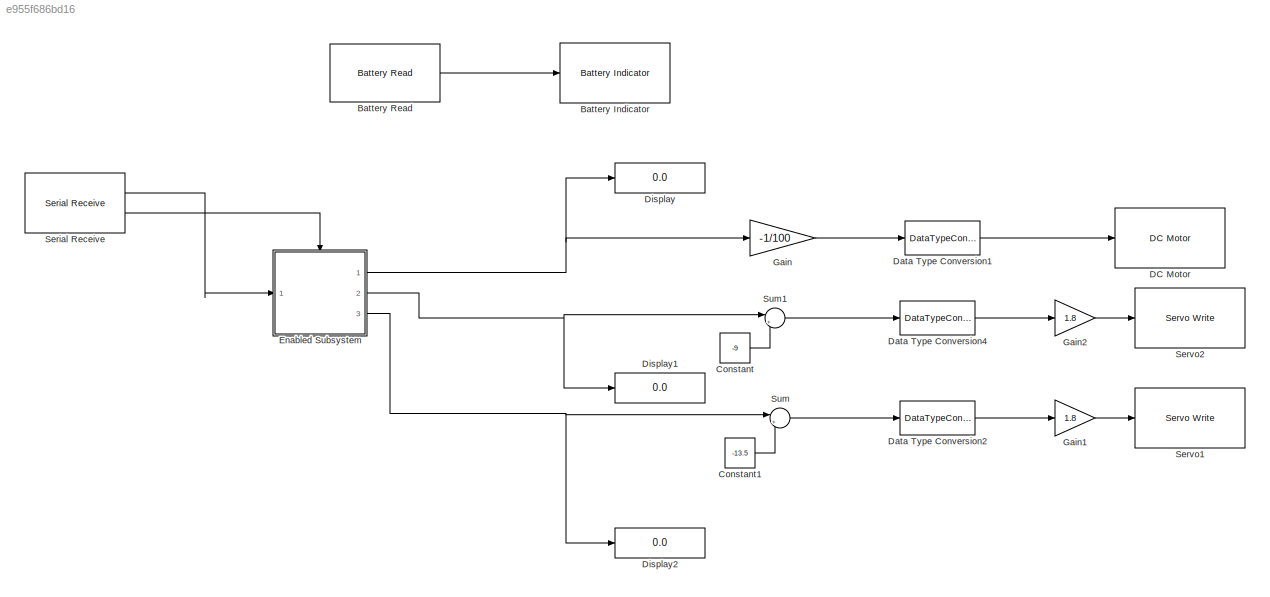
MODEL slx_e955f686bd16
KIND model
CONFIG AbsTol = auto
CONFIG EnableMultiTasking = on
CONFIG FixedStep = auto
CONFIG MaxStep = auto
CONFIG MinStep = auto
CONFIG RelTol = 1e-3
CONFIG SampleTimeConstraint = Unconstrained
CONFIG Solver = FixedStepAuto
CONFIG SolverName = FixedStepAuto
CONFIG StartTime = 0.0
CONFIG StopTime = inf
BLOCK [Reference] Battery Indicator  REF=frdmtfcshieldlib/Battery Indicator
  Ports = [1]
  SourceBlock = frdmtfcshieldlib/Battery Indicator
  SourceProductBaseCode = EC_FREEDOM_BOARD
  SourceProductName = Simulink Coder Support Package for NXP FRDM-KL25Z Board
  SourceType = Battery Indicator
BLOCK [Reference] Battery Read  REF=frdmtfcshieldlib/Battery Read
  Ports = [0, 1]
  SourceBlock = frdmtfcshieldlib/Battery Read
  SourceProductBaseCode = EC_FREEDOM_BOARD
  SourceProductName = Simulink Coder Support Package for NXP FRDM-KL25Z Board
  SourceType = Battery Read
BLOCK [Constant] Constant
  Value = -9
BLOCK [Constant] Constant1
  Value = -13.5
BLOCK [Reference] DC Motor  REF=frdmtfcshieldlib/DC Motor
  Ports = [1]
  SourceBlock = frdmtfcshieldlib/DC Motor
  SourceProductBaseCode = EC_FREEDOM_BOARD
  SourceProductName = Simulink Coder Support Package for NXP FRDM-KL25Z Board
  SourceType = DC Motor
BLOCK [DataTypeConversion] Data Type Conversion1
  OutDataTypeStr = double
  RndMeth = Floor
  SaturateOnIntegerOverflow = off
BLOCK [DataTypeConversion] Data Type Conversion2
  OutDataTypeStr = double
  RndMeth = Floor
  SaturateOnIntegerOverflow = off
BLOCK [DataTypeConversion] Data Type Conversion4
  OutDataTypeStr = int8
  RndMeth = Floor
  SaturateOnIntegerOverflow = off
BLOCK [Display] Display
  Decimation = 1
  Ports = [1]
BLOCK [Display] Display1
  Decimation = 1
  Ports = [1]
BLOCK [Display] Display2
  Decimation = 1
  Ports = [1]
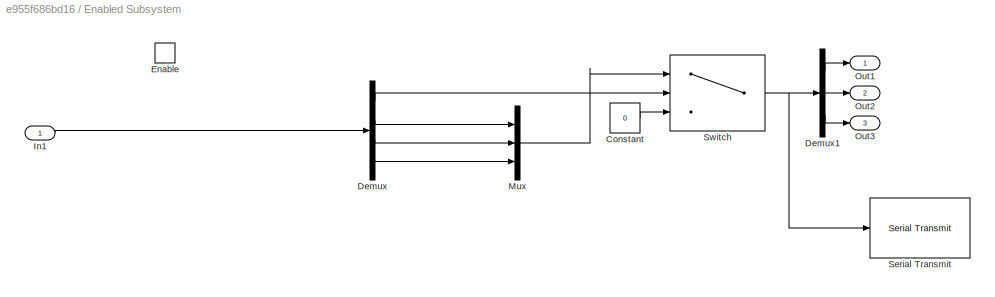
BLOCK [SubSystem] Enabled Subsystem
  Ports = [1, 3, 1]
  RequestExecContextInheritance = off
  TreatAsAtomicUnit = on
  Variant = off
BLOCK [Constant] Enabled Subsystem/Constant
  Value = 0
BLOCK [Demux] Enabled Subsystem/Demux
  DisplayOption = bar
  Ports = [1, 4]
BLOCK [Demux] Enabled Subsystem/Demux1
  DisplayOption = bar
  Outputs = 3
  Ports = [1, 3]
BLOCK [EnablePort] Enabled Subsystem/Enable
  Ports = []
BLOCK [Inport] Enabled Subsystem/In1
  IconDisplay = Port number
BLOCK [Mux] Enabled Subsystem/Mux
  DisplayOption = bar
  Inputs = 3
  Ports = [3, 1]
BLOCK [Outport] Enabled Subsystem/Out1
  IconDisplay = Port number
BLOCK [Outport] Enabled Subsystem/Out2
  IconDisplay = Port number
  Port = 2
BLOCK [Outport] Enabled Subsystem/Out3
  IconDisplay = Port number
  Port = 3
BLOCK [Reference] Enabled Subsystem/Serial Transmit  REF=frdmkl25zlib/Serial Transmit
  Ports = [1]
  SourceBlock = frdmkl25zlib/Serial Transmit
  SourceProductBaseCode = EC_FREEDOM_BOARD
  SourceProductName = Simulink Coder Support Package for NXP FRDM-KL25Z Board
  SourceType = Serial Transmit
BLOCK [Switch] Enabled Subsystem/Switch
  InputSameDT = off
  SaturateOnIntegerOverflow = off
  Threshold = 127
BLOCK [Gain] Gain
  Gain = -1/100
  OutDataTypeStr = Inherit: Inherit via internal rule
  ParamDataTypeStr = Inherit: Inherit via internal rule
  SaturateOnIntegerOverflow = off
BLOCK [Gain] Gain1
  Gain = 1.8
  OutDataTypeStr = Inherit: Inherit via internal rule
  ParamDataTypeStr = Inherit: Inherit via internal rule
  SaturateOnIntegerOverflow = off
BLOCK [Gain] Gain2
  Gain = 1.8
  OutDataTypeStr = Inherit: Inherit via internal rule
  ParamDataTypeStr = Inherit: Inherit via internal rule
  SaturateOnIntegerOverflow = off
BLOCK [Reference] Serial Receive  REF=frdmkl25zlib/Serial Receive
  Ports = [0, 2]
  SourceBlock = frdmkl25zlib/Serial Receive
  SourceProductBaseCode = EC_FREEDOM_BOARD
  SourceProductName = Simulink Coder Support Package for NXP FRDM-KL25Z Board
  SourceType = Serial Receive
BLOCK [Reference] Servo1  REF=frdmtfcshieldlib/Servo Write
  Ports = [1]
  SourceBlock = frdmtfcshieldlib/Servo Write
  SourceProductBaseCode = EC_FREEDOM_BOARD
  SourceProductName = Simulink Coder Support Package for NXP FRDM-KL25Z Board
  SourceType = Servo Write
BLOCK [Reference] Servo2  REF=frdmtfcshieldlib/Servo Write
  Ports = [1]
  SourceBlock = frdmtfcshieldlib/Servo Write
  SourceProductBaseCode = EC_FREEDOM_BOARD
  SourceProductName = Simulink Coder Support Package for NXP FRDM-KL25Z Board
  SourceType = Servo Write
BLOCK [Sum] Sum
  IconShape = round
  InputSameDT = off
  Inputs = |+-
  OutDataTypeStr = Inherit: Inherit via internal rule
  Ports = [2, 1]
  SaturateOnIntegerOverflow = off
BLOCK [Sum] Sum1
  IconShape = round
  InputSameDT = off
  Inputs = |+-
  OutDataTypeStr = Inherit: Inherit via internal rule
  Ports = [2, 1]
  SaturateOnIntegerOverflow = off
LINE Battery Read:1 -> Battery Indicator:1
LINE Constant1:1 -> Sum:2
LINE Constant:1 -> Sum1:2
LINE Data Type Conversion1:1 -> DC Motor:1
LINE Data Type Conversion2:1 -> Gain1:1
LINE Data Type Conversion4:1 -> Gain2:1
LINE Enabled Subsystem/Constant:1 -> Enabled Subsystem/Switch:3
LINE Enabled Subsystem/Demux1:1 -> Enabled Subsystem/Out1:1
LINE Enabled Subsystem/Demux1:2 -> Enabled Subsystem/Out2:1
LINE Enabled Subsystem/Demux1:3 -> Enabled Subsystem/Out3:1
LINE Enabled Subsystem/Demux:1 -> Enabled Subsystem/Switch:2
LINE Enabled Subsystem/Demux:2 -> Enabled Subsystem/Mux:1
LINE Enabled Subsystem/Demux:3 -> Enabled Subsystem/Mux:2
LINE Enabled Subsystem/Demux:4 -> Enabled Subsystem/Mux:3
LINE Enabled Subsystem/In1:1 -> Enabled Subsystem/Demux:1
LINE Enabled Subsystem/Mux:1 -> Enabled Subsystem/Switch:1
NET Enabled Subsystem/Switch:1 -> Enabled Subsystem/Demux1:1, Enabled Subsystem/Serial Transmit:1
NET Enabled Subsystem:1 -> Display:1, Gain:1
NET Enabled Subsystem:2 -> Display1:1, Sum1:1
NET Enabled Subsystem:3 -> Display2:1, Sum:1
LINE Gain1:1 -> Servo1:1
LINE Gain2:1 -> Servo2:1
LINE Gain:1 -> Data Type Conversion1:1
LINE Serial Receive:1 -> Enabled Subsystem:1
LINE Serial Receive:2 -> Enabled Subsystem:enable
LINE Sum1:1 -> Data Type Conversion4:1
LINE Sum:1 -> Data Type Conversion2:1
note: NET lines group one-source signal fan-out (src -> all destinations, sorted); 1:1 wires keep LINE
